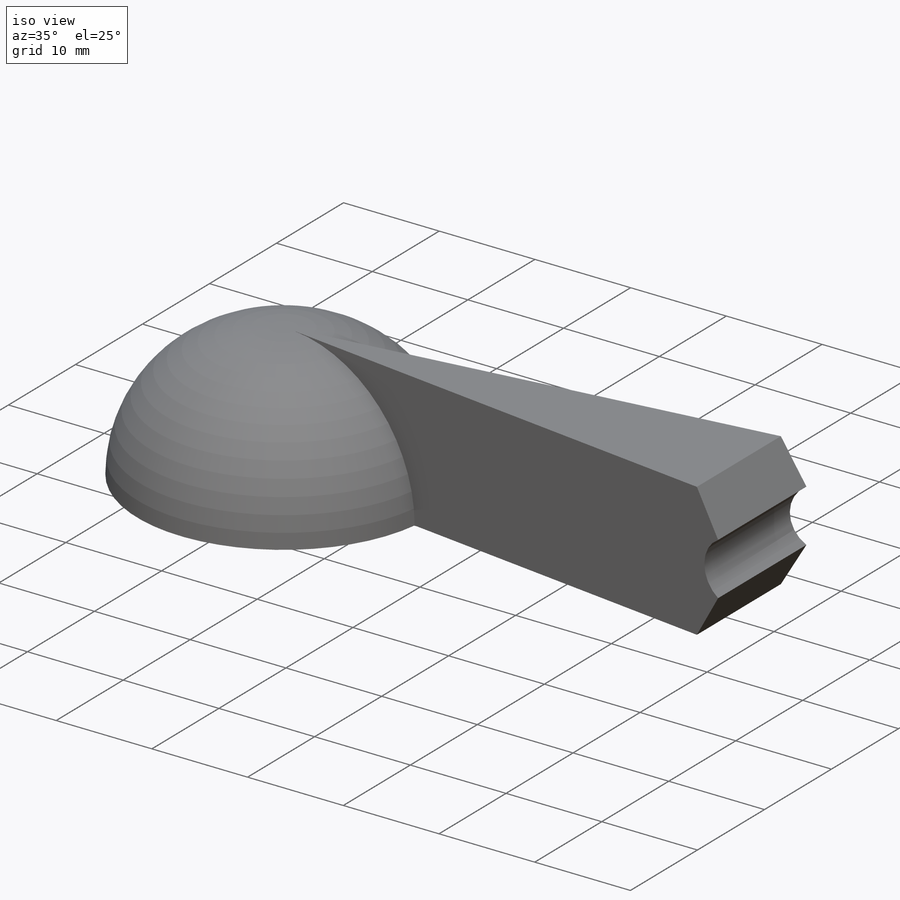
[diagram: iso view]
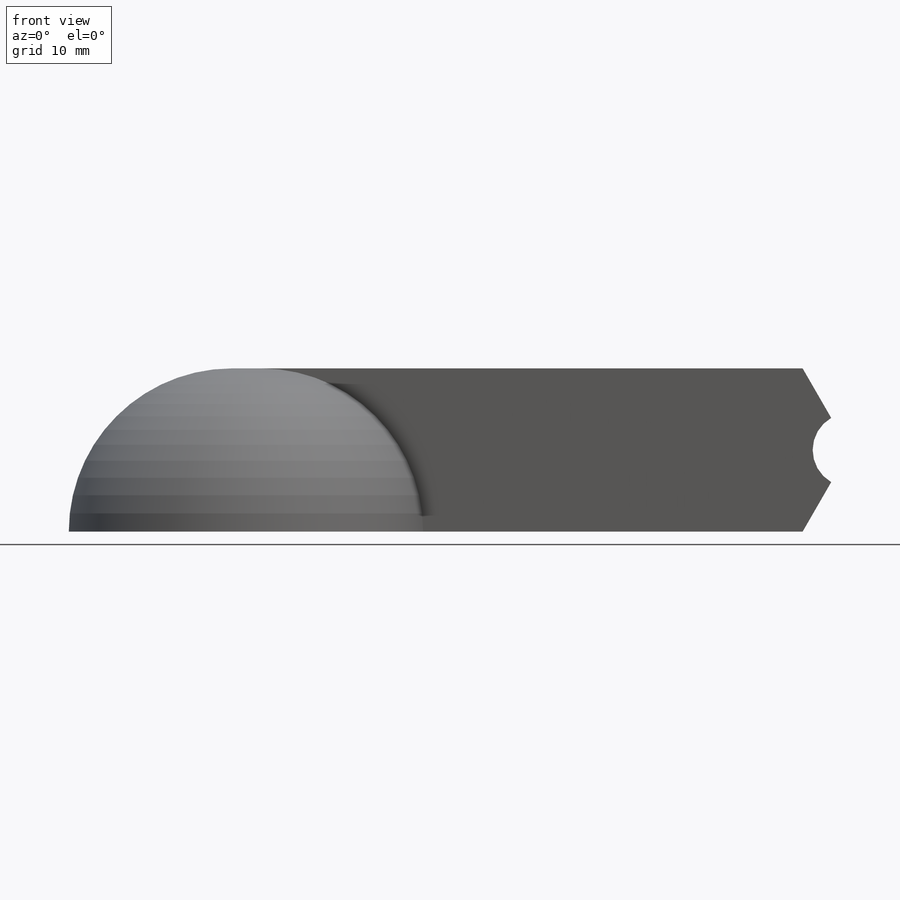
[diagram: front view]
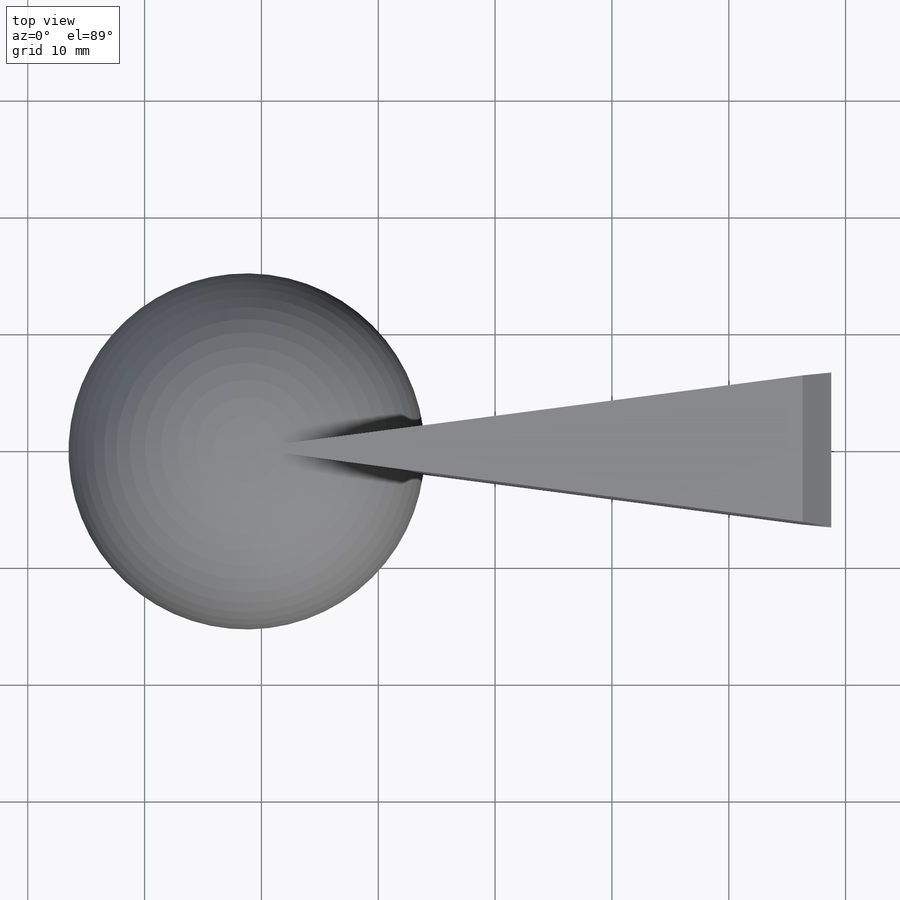
[diagram: top view]
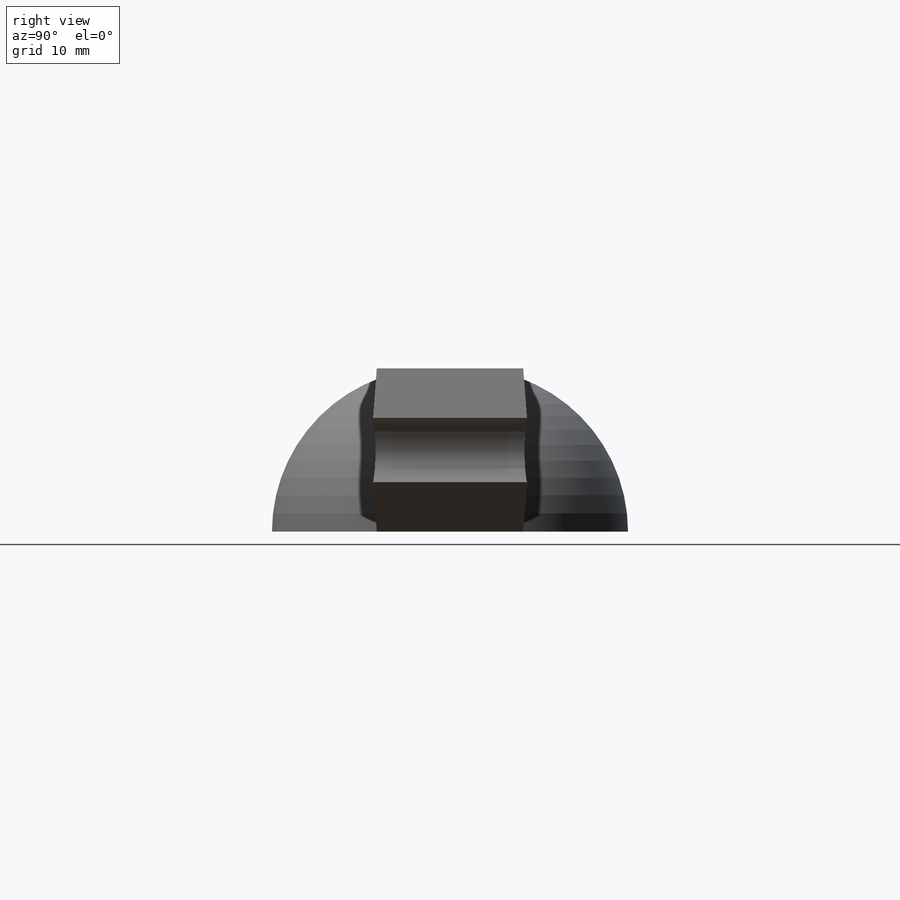
[diagram: right view]
SOLIDWORKS PART (.sldprt)
format: sldprt  version: not decoded by parser v0  size: 226,304 bytes
history: native  units: mm
features: sketch x3, revolve x2, material x1, cut_extrude x1 (+11 scaffold rows collapsed)
feature tree (18):
  scaffold x11  (default folders/planes/origin — collapsed)
  material  "ABS"
  sketch  "Sketch1"  dims[D1=12.7mm D3=1.27mm D4=1.27mm D2=1.27mm]
  revolve  "Revolve1"  Angle=360deg
  sketch  "Sketch3"  dims[D1=50.8mm]
  revolve  "Revolve2"  Angle=7.5deg
  sketch  "Sketch4"  dims[c1.D1=~4.823033mm c1.D2=3.175mm c2.D1=3.175mm c2.D2=3.175mm c3.D1=6.985mm c3.D2=~5.610038mm c4.D2=30.0deg c4.D1=13.97mm c5.D1=~51.713129deg c6.D1=~8.848712mm c7.D1=120.0deg]
  cut_extrude  "Cut-Extrude1"  [1 undecoded]
decode coverage: 5 of 6 modeling features carry decoded parameters
note: ~ marks probable driven/reference dimensions
note: 1 parameter value undecoded
note: suppression state not decoded; provenance and decode notes live in map.json
